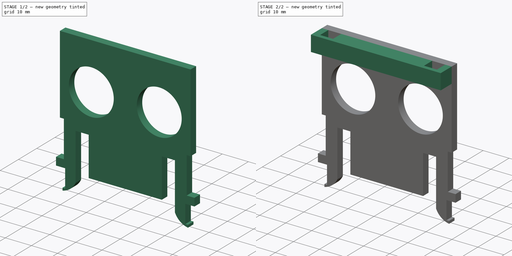
[diagram: build sequence overview — one tinted view per stage of 2, left to right]
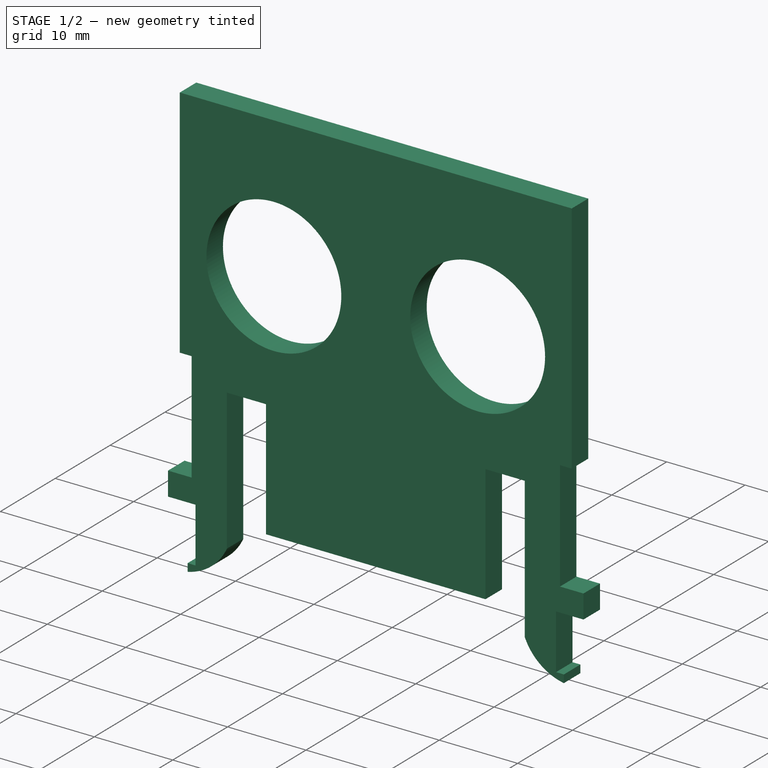
[diagram: stage 1 of 2 — iso view after this stage's code; geometry added in this stage tinted green]
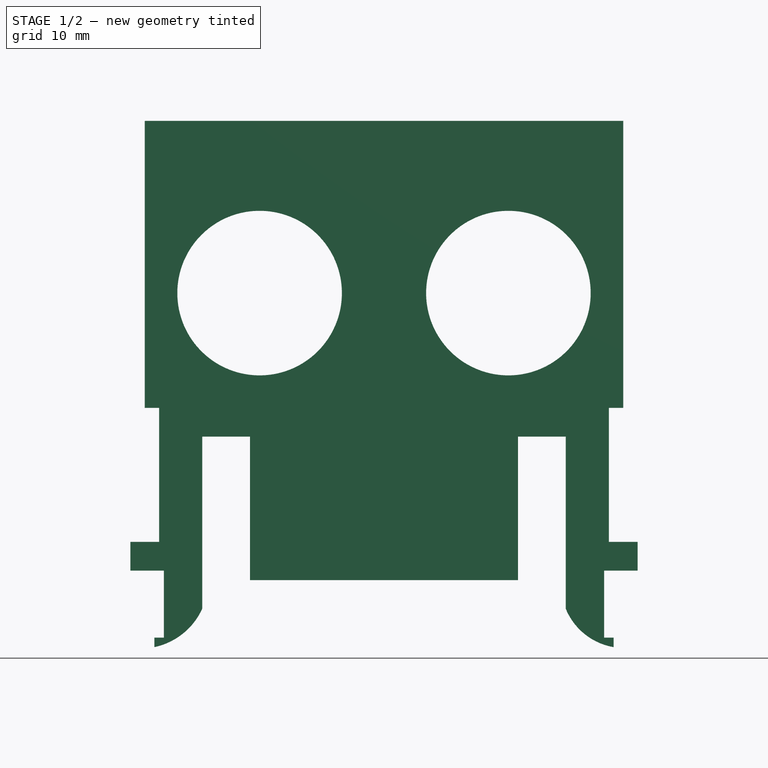
[diagram: stage 1 of 2 — front view after this stage's code; geometry added in this stage tinted green]
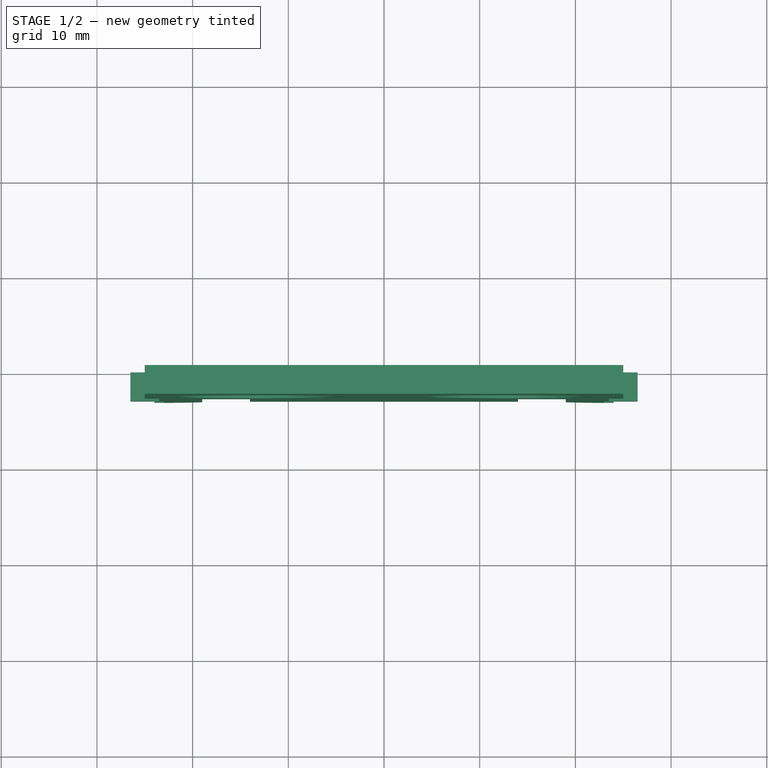
[diagram: stage 1 of 2 — top view after this stage's code; geometry added in this stage tinted green]
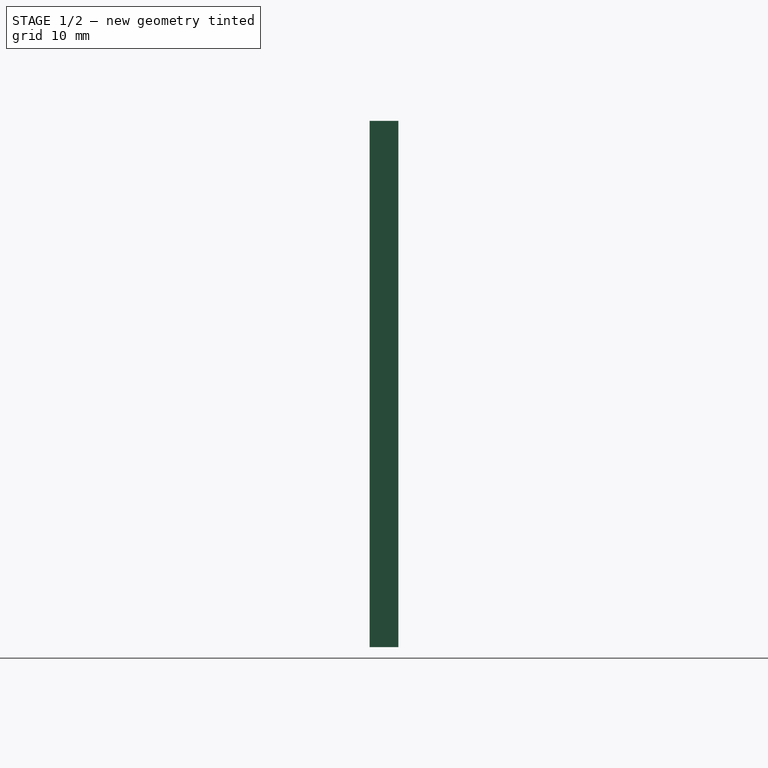
[diagram: stage 1 of 2 — right view after this stage's code; geometry added in this stage tinted green]
FCSTD DOCUMENT  (FreeCAD 0.18R4 (GitTag))
Label: sts-ultrasonic-camera
License: All rights reserved
LicenseURL: http://en.wikipedia.org/wiki/All_rights_reserved
objects: Sketcher::SketchObject×4, PartDesign::Pad×2, PartDesign::Pocket×2, PartDesign::Body×1
note: 13 computed .brp shape members not serialized (recipe doc carries the construction recipe); baked Part::Feature solids carry a one-line shape summary decoded from their .brp

FEATURE [Sketcher::SketchObject] Sketch
  MapMode = 5
  Placement = pos=(0,0,0) rot=(1,0,0;1.5708rad)
  Support = -> [XZ_Plane]
  sketch-geometry (28):
    g0: LineSegment StartX=-24 StartY=-25 StartZ=0 EndX=-24 EndY=-24 EndZ=0
    g1: LineSegment StartX=-24 StartY=-24 StartZ=0 EndX=-23 EndY=-24 EndZ=0
    g2: LineSegment StartX=-23 StartY=-24 StartZ=0 EndX=-23 EndY=-17 EndZ=0
    g3: LineSegment StartX=-23 StartY=-17 StartZ=0 EndX=-26.5 EndY=-17 EndZ=0
    g4: LineSegment StartX=-26.5 StartY=-17 StartZ=0 EndX=-26.5 EndY=-14 EndZ=0
    g5: LineSegment StartX=-26.5 StartY=-14 StartZ=0 EndX=-23.5 EndY=-14 EndZ=0
    g6: LineSegment StartX=-23.5 StartY=-14 StartZ=0 EndX=-23.5 EndY=0 EndZ=0
    g7: LineSegment StartX=-23.5 StartY=0 StartZ=0 EndX=-25 EndY=0 EndZ=0
    g8: LineSegment StartX=-25 StartY=0 StartZ=0 EndX=-25 EndY=30 EndZ=0
    g9: LineSegment StartX=25 StartY=30 StartZ=0 EndX=25 EndY=0 EndZ=0
    g10: LineSegment StartX=25 StartY=0 StartZ=0 EndX=23.5 EndY=0 EndZ=0
    g11: LineSegment StartX=23.5 StartY=0 StartZ=0 EndX=23.5 EndY=-14 EndZ=0
    g12: LineSegment StartX=23.5 StartY=-14 StartZ=0 EndX=26.5 EndY=-14 EndZ=0
    g13: LineSegment StartX=26.5 StartY=-14 StartZ=0 EndX=26.5 EndY=-17 EndZ=0
    g14: LineSegment StartX=26.5 StartY=-17 StartZ=0 EndX=23 EndY=-17 EndZ=0
    g15: LineSegment StartX=23 StartY=-17 StartZ=0 EndX=23 EndY=-24 EndZ=0
    g16: LineSegment StartX=23 StartY=-24 StartZ=0 EndX=24 EndY=-24 EndZ=0
    g17: LineSegment StartX=24 StartY=-24 StartZ=0 EndX=24 EndY=-25 EndZ=0
    g18: LineSegment StartX=-19 StartY=-21 StartZ=0 EndX=-19 EndY=-3 EndZ=0
    g19: LineSegment StartX=-19 StartY=-3 StartZ=0 EndX=-14 EndY=-3 EndZ=0
    g20: LineSegment StartX=-14 StartY=-3 StartZ=0 EndX=-14 EndY=-18 EndZ=0
    g21: LineSegment StartX=-14 StartY=-18 StartZ=0 EndX=14 EndY=-18 EndZ=0
    g22: LineSegment StartX=14 StartY=-18 StartZ=0 EndX=14 EndY=-3 EndZ=0
    g23: LineSegment StartX=14 StartY=-3 StartZ=0 EndX=19 EndY=-3 EndZ=0
    g24: LineSegment StartX=19 StartY=-3 StartZ=0 EndX=19 EndY=-21 EndZ=0
    g25: ArcOfCircle CenterX=25.1126 CenterY=-18.4843 CenterZ=0 NormalX=0 NormalY=0 NormalZ=1 AngleXU=0 Radius=6.61 StartAngle=3.53203 EndAngle=4.54327
    g26: ArcOfCircle CenterX=-25.4798 CenterY=-18.0253 CenterZ=0 NormalX=0 NormalY=0 NormalZ=1 AngleXU=0 Radius=7.13 StartAngle=4.92145 EndAngle=5.85281
    g27: LineSegment StartX=-25 StartY=30 StartZ=0 EndX=25 EndY=30 EndZ=0
  constraints (86):
    c: Vertical(g0)
    c: Coincident(g0,g1)
    c: Horizontal(g1)
    c: Coincident(g1,g2)
    c: Vertical(g2)
    c: Coincident(g2,g3)
    c: Coincident(g3,g4)
    c: Vertical(g4)
    c: Coincident(g4,g5)
    c: Coincident(g5,g6)
    c: Vertical(g6)
    c: Coincident(g6,g7)
    c: Horizontal(g7)
    c: Coincident(g7,g8)
    c: Vertical(g8)
    c: Vertical(g9)
    c: Coincident(g9,g10)
    c: Coincident(g10,g11)
    c: Vertical(g11)
    c: Coincident(g11,g12)
    c: Horizontal(g12)
    c: Coincident(g12,g13)
    c: Vertical(g13)
    c: Coincident(g13,g14)
    c: Horizontal(g14)
    c: Coincident(g14,g15)
    c: Vertical(g15)
    c: Coincident(g15,g16)
    c: Horizontal(g16)
    c: Coincident(g16,g17)
    c: Vertical(g17)
    c: Vertical(g18)
    c: Coincident(g18,g19)
    c: Horizontal(g19)
    c: Coincident(g19,g20)
    c: Vertical(g20)
    c: Coincident(g20,g21)
    c: Coincident(g21,g22)
    c: Vertical(g22)
    c: Coincident(g22,g23)
    c: Horizontal(g23)
    c: Coincident(g23,g24)
    c: Vertical(g24)
    c: Coincident(g25,g24)
    c: Coincident(g25,g17)
    c: Symmetric(g8,g9,g-2)
    c: DistanceX(g8,g9) = 50
    c: DistanceY(g9,g9) = 30
    c: Equal(g8,g9)
    c: Equal(g6,g11)
    c: DistanceX(g6,g10) = 47
    c: Symmetric(g6,g10,g-2)
    c: DistanceX(g21,g21) = 28
    c: Symmetric(g20,g21,g-2)
    c: DistanceX(g19,g19) = 5
    c: Equal(g23,g19)
    c: DistanceY(g15,g15) = 7
    c: Equal(g2,g15)
    c: DistanceX(g1,g1) = 1
    c: DistanceY(g0,g0) = 1
    c: DistanceY(g0,g18) = 4
    c: Coincident(g26,g18)
    c: Coincident(g26,g0)
    c: Horizontal(g3)
    c: Horizontal(g5)
    c: DistanceX(g5,g5) = 3
    c: DistanceY(g4,g4) = 3
    c: DistanceY(g0,g20) = 7
    c: DistanceY(g20,g20) = 15
    c: Coincident(g27,g8)
    c: Coincident(g27,g9)
    c: DistanceY(g-1,g9) = 0
    c: DistanceY(g19,g6) = 3
    c: Equal(g19,g23)
    c: Equal(g20,g22)
    c: Equal(g5,g12)
    c: Equal(g13,g4)
    c: Equal(g2,g15)
    c: Equal(g17,g0)
    c: Equal(g16,g1)
    c: Equal(g18,g24)
    c: Equal(g15,g2)
    c: DistanceX(g2,g18) = 4
    c: DistanceX(g24,g14) = 4
    c: Radius(g25) = 6.61
    c: Radius(g26) = 7.13
FEATURE [PartDesign::Pad] Pad
  Length = 3
  Length2 = 100
  Placement = pos=(0,0,0) rot=(1,0,0;1.5708rad)
  Profile = -> Sketch
  Type = 0
FEATURE [Sketcher::SketchObject] Sketch001
  MapMode = 5
  Placement = pos=(0,-3,2e-15) rot=(1,0,0;1.5708rad)
  Support = -> [Pad]
  sketch-geometry (2):
    g0: Circle CenterX=-13 CenterY=12 CenterZ=0 NormalX=0 NormalY=0 NormalZ=1 AngleXU=0 Radius=8.6
    g1: Circle CenterX=13 CenterY=12 CenterZ=0 NormalX=0 NormalY=0 NormalZ=1 AngleXU=0 Radius=8.6
  constraints (5):
    c: Radius(g1) = 8.6
    c: Radius(g0) = 8.6
    c: DistanceX(g0,g1) = 26
    c: Symmetric(g0,g1,g-2)
    c: DistanceY(g1) = 12
FEATURE [PartDesign::Pocket] Pocket
  BaseFeature = -> Pad
  Length = 5
  Length2 = 100
  Placement = pos=(0,0,0) rot=(1,0,0;1.5708rad)
  Profile = -> Sketch001
  Type = 1
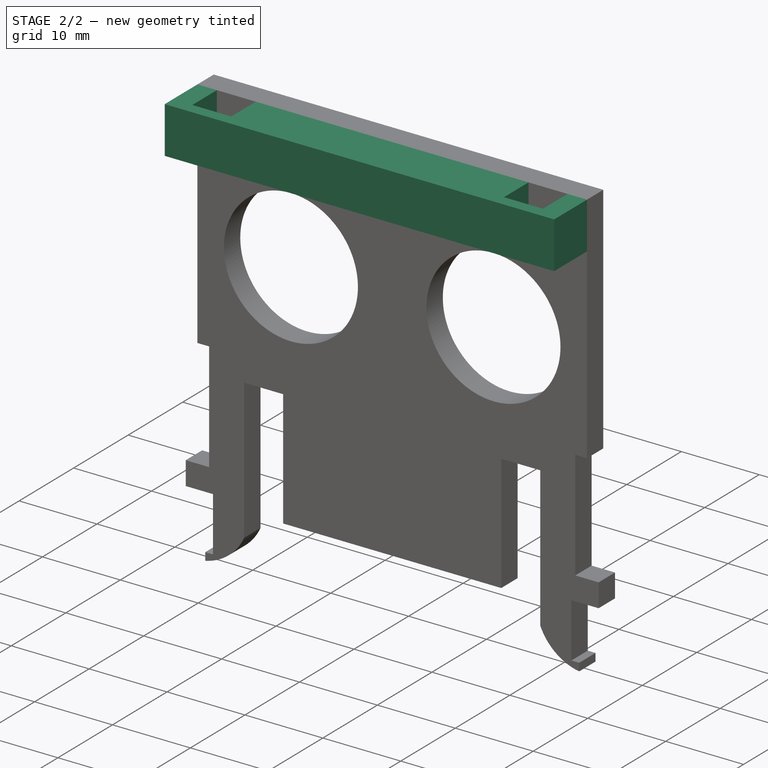
[diagram: stage 2 of 2 — iso view after this stage's code; geometry added in this stage tinted green]
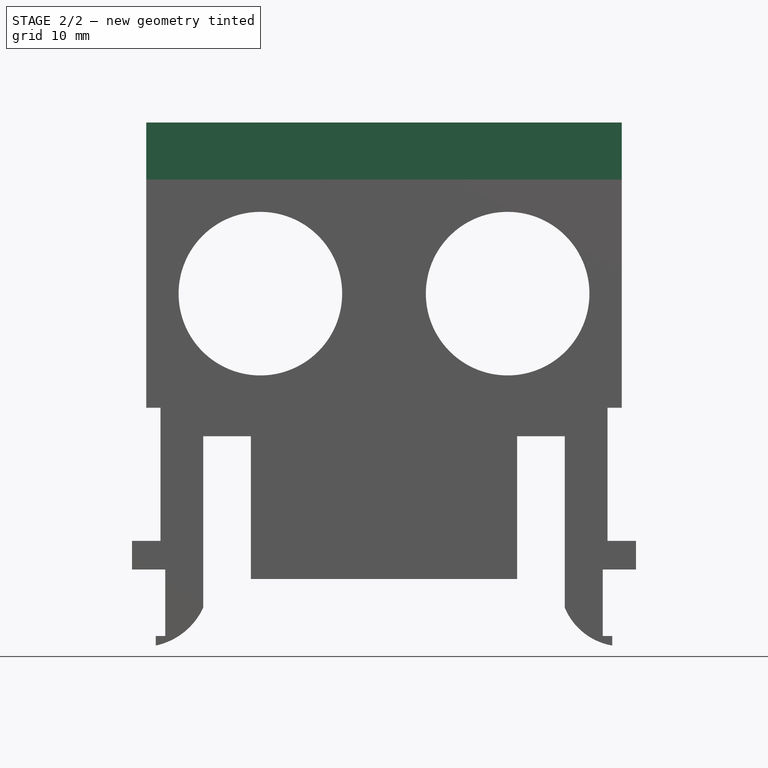
[diagram: stage 2 of 2 — front view after this stage's code; geometry added in this stage tinted green]
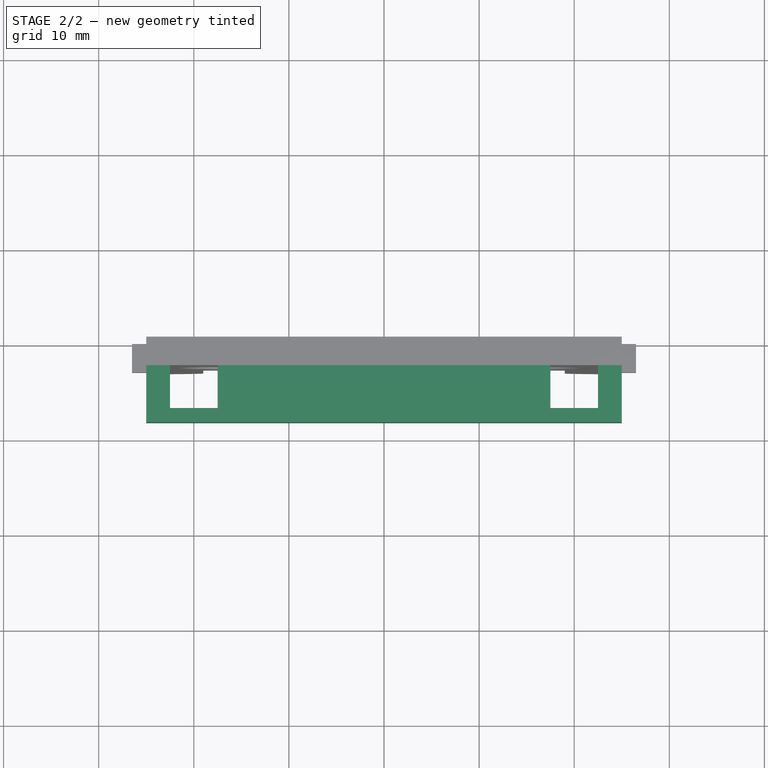
[diagram: stage 2 of 2 — top view after this stage's code; geometry added in this stage tinted green]
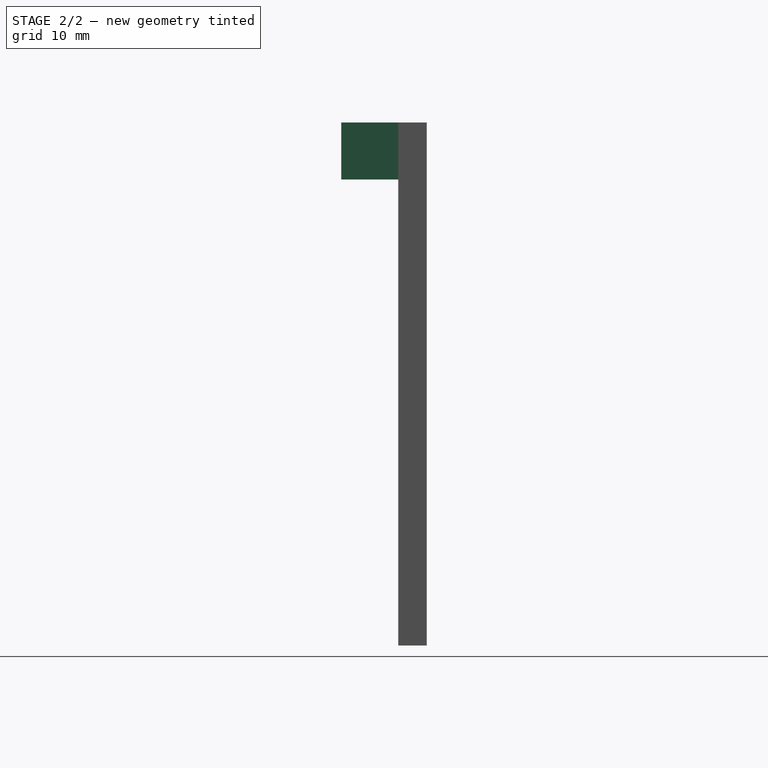
[diagram: stage 2 of 2 — right view after this stage's code; geometry added in this stage tinted green]
FEATURE [Sketcher::SketchObject] Sketch002
  ExternalGeometry = -> [Pocket]
  MapMode = 5
  Placement = pos=(0,-3,3.3e-15) rot=(1,0,0;1.5708rad)
  Support = -> [Pocket]
  sketch-geometry (4):
    g0: LineSegment StartX=-25 StartY=24 StartZ=0 EndX=25 EndY=24 EndZ=0
    g1: LineSegment StartX=25 StartY=24 StartZ=0 EndX=25 EndY=30 EndZ=0
    g2: LineSegment StartX=25 StartY=30 StartZ=0 EndX=-25 EndY=30 EndZ=0
    g3: LineSegment StartX=-25 StartY=30 StartZ=0 EndX=-25 EndY=24 EndZ=0
  constraints (10):
    c: Coincident(g0,g1)
    c: Coincident(g1,g2)
    c: Coincident(g2,g3)
    c: Coincident(g3,g0)
    c: Horizontal(g0)
    c: Vertical(g1)
    c: Vertical(g3)
    c: Coincident(g2,g-3)
    c: Coincident(g1,g-3)
    c: DistanceY(g1,g1) = 6
FEATURE [PartDesign::Pad] Pad001
  BaseFeature = -> Pocket
  Length = 6
  Length2 = 100
  Placement = pos=(0,0,0) rot=(1,0,0;1.5708rad)
  Profile = -> Sketch002
  Type = 0
FEATURE [Sketcher::SketchObject] Sketch003
  ExternalGeometry = -> [Pad001]
  MapMode = 5
  Placement = pos=(0,4.66e-14,30) rot=(0,0,1;3.14159rad)
  Support = -> [Pad001]
  sketch-geometry (8):
    g0: LineSegment StartX=-17.5 StartY=7.5 StartZ=0 EndX=-22.5 EndY=7.5 EndZ=0
    g1: LineSegment StartX=-22.5 StartY=7.5 StartZ=0 EndX=-22.5 EndY=3 EndZ=0
    g2: LineSegment StartX=-22.5 StartY=3 StartZ=0 EndX=-17.5 EndY=3 EndZ=0
    g3: LineSegment StartX=-17.5 StartY=3 StartZ=0 EndX=-17.5 EndY=7.5 EndZ=0
    g4: LineSegment StartX=17.5 StartY=7.5 StartZ=0 EndX=22.5 EndY=7.5 EndZ=0
    g5: LineSegment StartX=22.5 StartY=7.5 StartZ=0 EndX=22.5 EndY=3 EndZ=0
    g6: LineSegment StartX=22.5 StartY=3 StartZ=0 EndX=17.5 EndY=3 EndZ=0
    g7: LineSegment StartX=17.5 StartY=3 StartZ=0 EndX=17.5 EndY=7.5 EndZ=0
  constraints (23):
    c: Coincident(g0,g1)
    c: Coincident(g1,g2)
    c: Coincident(g2,g3)
    c: Coincident(g3,g0)
    c: Horizontal(g0)
    c: Horizontal(g2)
    c: Vertical(g1)
    c: Vertical(g3)
    c: Coincident(g4,g5)
    c: Coincident(g5,g6)
    c: Coincident(g6,g7)
    c: Coincident(g7,g4)
    c: Horizontal(g4)
    c: Horizontal(g6)
    c: Vertical(g5)
    c: Vertical(g7)
    c: DistanceY(g5,g5) = 4.5
    c: Equal(g1,g5)
    c: DistanceY(g5) = 3
    c: Equal(g0,g4)
    c: DistanceX(g4,g4) = 5
    c: DistanceX(g2,g6) = 35
    c: Symmetric(g2,g6,g-2)
FEATURE [PartDesign::Pocket] Pocket001
  BaseFeature = -> Pad001
  Length = 6
  Length2 = 100
  Placement = pos=(0,0,0) rot=(1,0,0;1.5708rad)
  Profile = -> Sketch003
  Type = 0
FEATURE [PartDesign::Body] Body
  Group = -> [Sketch,Pad,Sketch001,Pocket,Sketch002,Pad001,Sketch003,Pocket001]
  Origin = -> Origin
  Tip = -> Pocket001
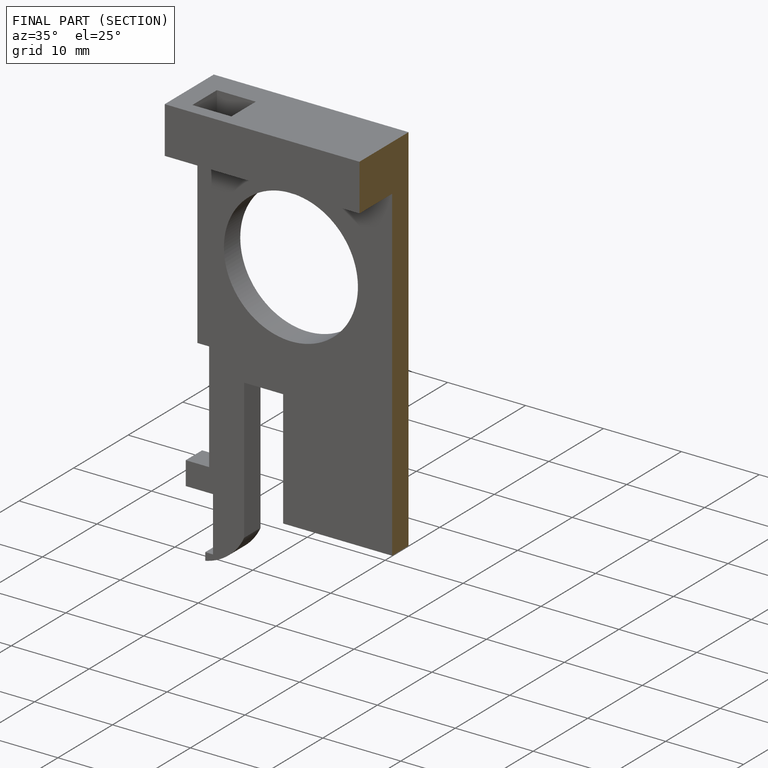
[diagram: finished part — half-section view (interior)]
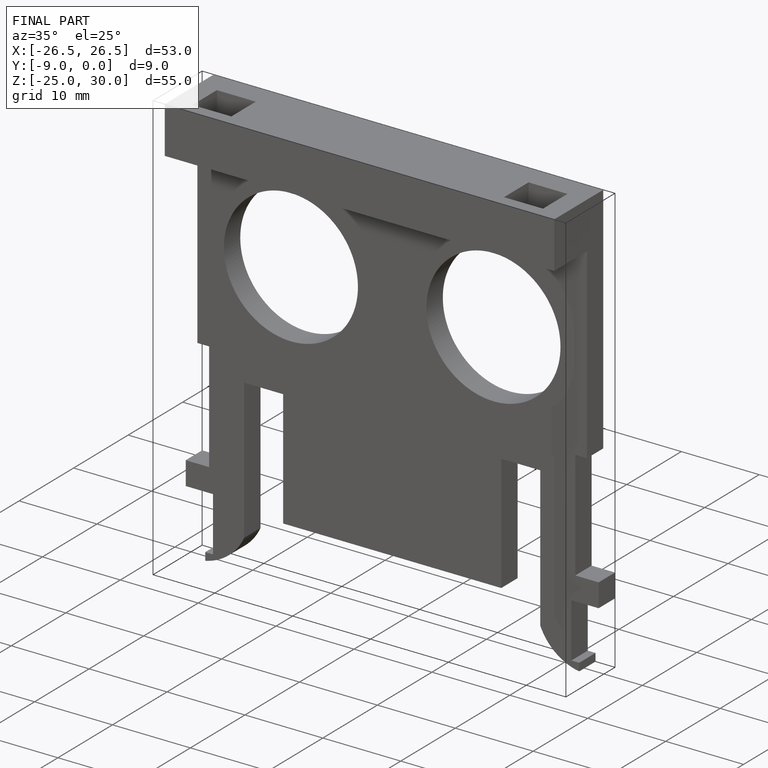
[diagram: finished part — iso view with bounding-box wireframe]
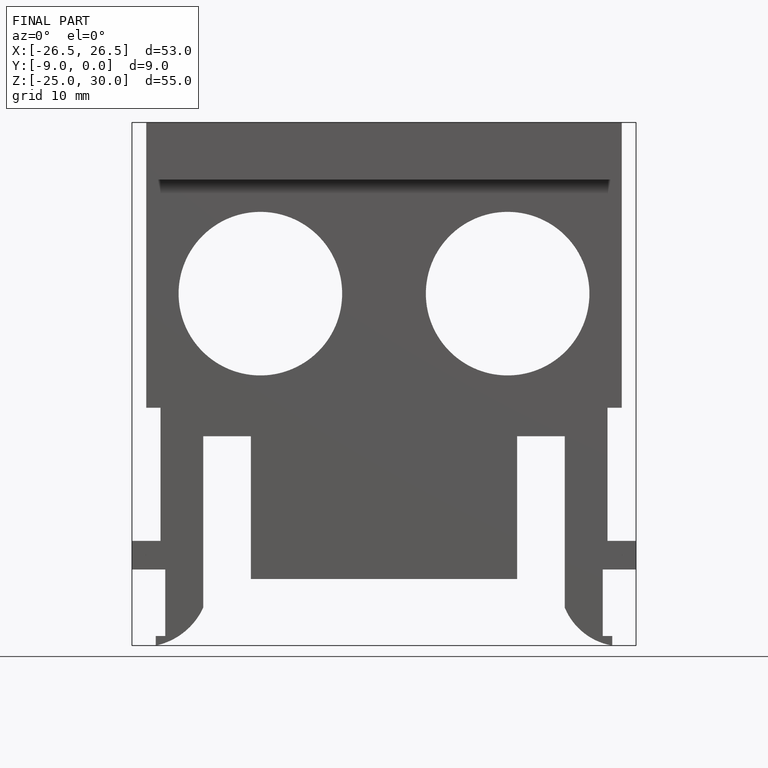
[diagram: finished part — front view with bounding-box wireframe]
